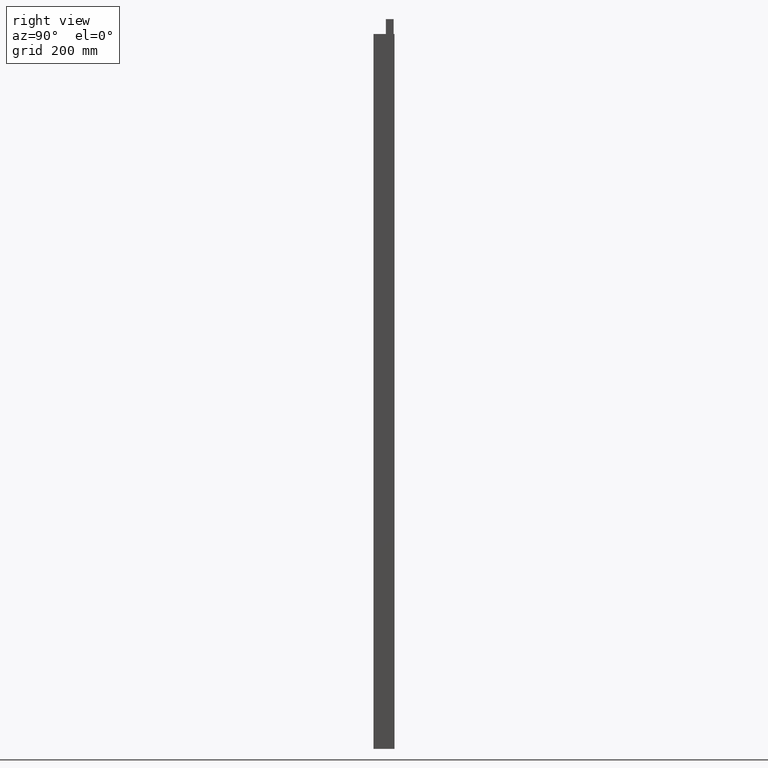
[diagram: clean part render]
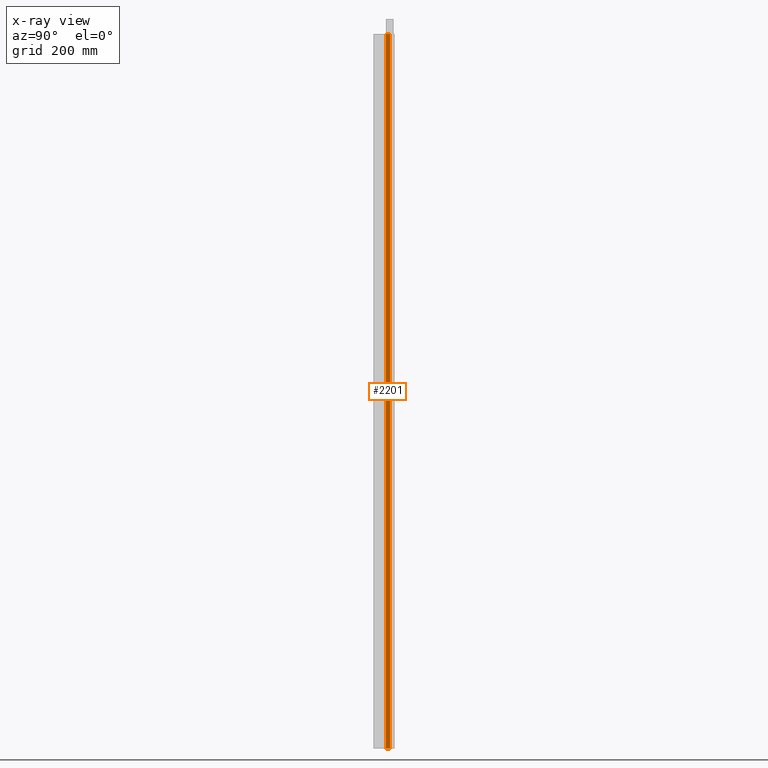
[diagram: x-ray — body ghosted, one internal face saturated and labeled with its STEP entity id]
A machine part, right view, then the same camera in x-ray: the body is ghosted and one INTERNAL B-rep face — a face not visible from any outside direction — is saturated and labeled: STEP entity #2201.
In plain terms, the highlighted planar face has unit normal (-1, 0, 0).
Its self-contained STEP definition (entity closure, byte-faithful):
#1585=DIRECTION('',(0.E0,-1.E0,0.E0));
#1586=VECTOR('',#1585,1.45E1);
#1587=CARTESIAN_POINT('',(-1.E1,0.E0,0.E0));
#1588=LINE('',#1587,#1586);
#1717=DIRECTION('',(0.E0,0.E0,-1.E0));
#1718=VECTOR('',#1717,2.4E3);
#1719=CARTESIAN_POINT('',(-1.E1,0.E0,0.E0));
#1720=LINE('',#1719,#1718);
#1721=DIRECTION('',(0.E0,0.E0,-1.E0));
#1722=VECTOR('',#1721,2.4E3);
#1723=CARTESIAN_POINT('',(-1.E1,-1.45E1,0.E0));
#1724=LINE('',#1723,#1722);
#1849=DIRECTION('',(0.E0,-1.E0,0.E0));
#1850=VECTOR('',#1849,1.45E1);
#1851=CARTESIAN_POINT('',(-1.E1,0.E0,-2.4E3));
#1852=LINE('',#1851,#1850);
#1981=CARTESIAN_POINT('',(-1.E1,0.E0,0.E0));
#1982=CARTESIAN_POINT('',(-1.E1,-1.45E1,0.E0));
#1983=VERTEX_POINT('',#1981);
#1984=VERTEX_POINT('',#1982);
#2041=CARTESIAN_POINT('',(-1.E1,0.E0,-2.4E3));
#2042=CARTESIAN_POINT('',(-1.E1,-1.45E1,-2.4E3));
#2043=VERTEX_POINT('',#2041);
#2044=VERTEX_POINT('',#2042);
#2187=CARTESIAN_POINT('',(-1.E1,0.E0,0.E0));
#2188=DIRECTION('',(-1.E0,0.E0,0.E0));
#2189=DIRECTION('',(0.E0,-1.E0,0.E0));
#2190=AXIS2_PLACEMENT_3D('',#2187,#2188,#2189);
#2191=PLANE('',#2190);
#2192=ORIENTED_EDGE('',*,*,#2118,.T.);
#2194=ORIENTED_EDGE('',*,*,#2193,.T.);
#2196=ORIENTED_EDGE('',*,*,#2195,.F.);
#2198=ORIENTED_EDGE('',*,*,#2197,.F.);
#2199=EDGE_LOOP('',(#2192,#2194,#2196,#2198));
#2200=FACE_OUTER_BOUND('',#2199,.F.);
#2118=EDGE_CURVE('',#1983,#1984,#1588,.T.);
#2193=EDGE_CURVE('',#1984,#2044,#1724,.T.);
#2195=EDGE_CURVE('',#2043,#2044,#1852,.T.);
#2197=EDGE_CURVE('',#1983,#2043,#1720,.T.);
#2201=ADVANCED_FACE('',(#2200),#2191,.T.);